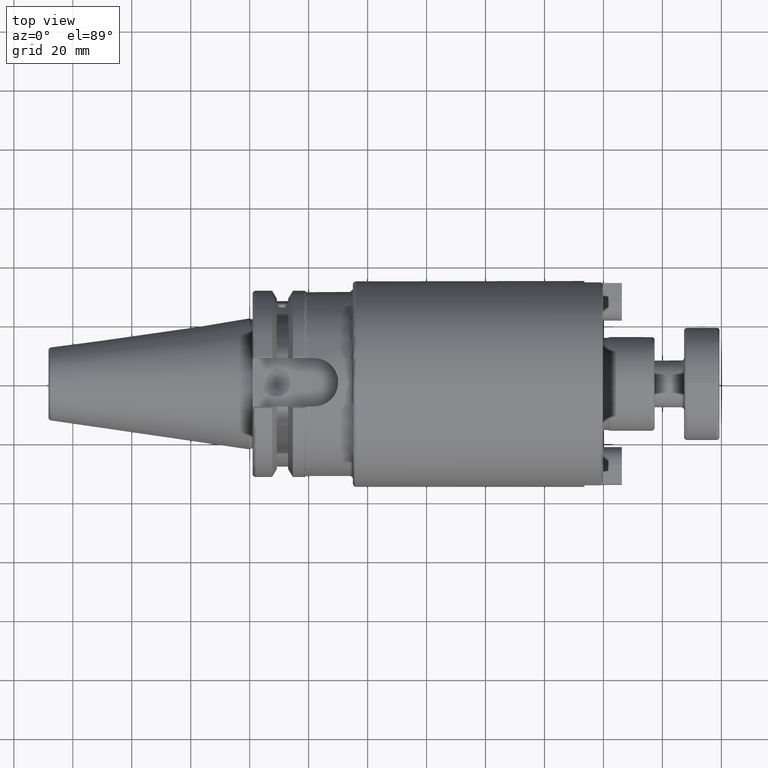
[diagram: clean part render]
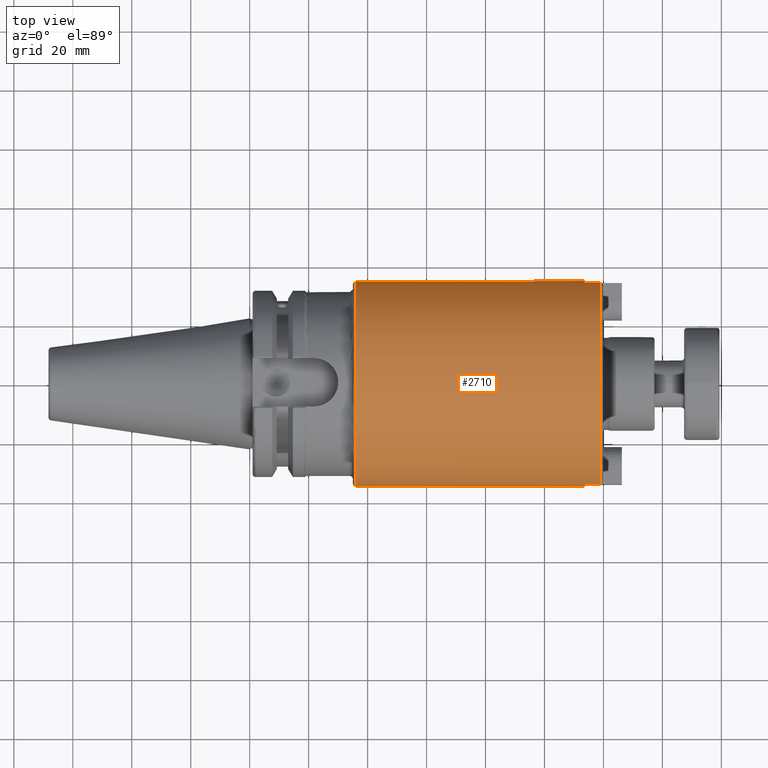
[diagram: same view with one face highlighted and labeled with its STEP entity id]
A machine part, top view. The second image highlights one B-rep face of the part: STEP entity #2710.
In plain terms, the highlighted cylindrical surface (bore or boss wall) has radius 34.925 mm, axis along (1, 0, 0).
Its self-contained STEP definition (entity closure, byte-faithful):
#271=FACE_OUTER_BOUND('',#439,.T.);
#439=EDGE_LOOP('',(#1986,#1987,#1988,#1989,#1990,#1991,#1992,#1993,#1994,
#1995,#1996,#1997,#1998));
#601=CIRCLE('',#2968,34.925);
#602=CIRCLE('',#2969,34.925);
#607=CIRCLE('',#2976,34.925);
#608=CIRCLE('',#2978,34.925);
#612=CIRCLE('',#2988,34.925);
#628=CIRCLE('',#3016,34.925);
#629=CIRCLE('',#3017,34.925);
#755=LINE('',#4277,#928);
#759=LINE('',#4307,#932);
#768=LINE('',#4366,#941);
#770=LINE('',#4373,#943);
#787=LINE('',#4576,#960);
#928=VECTOR('',#3338,10.);
#932=VECTOR('',#3358,10.);
#941=VECTOR('',#3401,10.);
#943=VECTOR('',#3409,10.);
#960=VECTOR('',#3492,34.925);
#1153=VERTEX_POINT('',#4260);
#1156=VERTEX_POINT('',#4275);
#1162=VERTEX_POINT('',#4294);
#1164=VERTEX_POINT('',#4306);
#1165=VERTEX_POINT('',#4311);
#1171=VERTEX_POINT('',#4327);
#1172=VERTEX_POINT('',#4340);
#1177=VERTEX_POINT('',#4364);
#1179=VERTEX_POINT('',#4372);
#1212=VERTEX_POINT('',#4570);
#1213=VERTEX_POINT('',#4571);
#1433=EDGE_CURVE('',#1153,#1156,#755,.T.);
#1442=EDGE_CURVE('',#1164,#1162,#759,.T.);
#1445=EDGE_CURVE('',#1156,#1165,#601,.T.);
#1446=EDGE_CURVE('',#1165,#1164,#602,.T.);
#1453=EDGE_CURVE('',#1153,#1171,#607,.T.);
#1456=EDGE_CURVE('',#1172,#1162,#608,.T.);
#1463=EDGE_CURVE('',#1172,#1177,#768,.T.);
#1466=EDGE_CURVE('',#1179,#1171,#770,.T.);
#1468=EDGE_CURVE('',#1177,#1179,#612,.T.);
#1512=EDGE_CURVE('',#1212,#1213,#628,.T.);
#1513=EDGE_CURVE('',#1213,#1212,#629,.T.);
#1515=EDGE_CURVE('',#1165,#1213,#787,.T.);
#1986=ORIENTED_EDGE('',*,*,#1442,.T.);
#1987=ORIENTED_EDGE('',*,*,#1456,.F.);
#1988=ORIENTED_EDGE('',*,*,#1463,.T.);
#1989=ORIENTED_EDGE('',*,*,#1468,.T.);
#1990=ORIENTED_EDGE('',*,*,#1466,.T.);
#1991=ORIENTED_EDGE('',*,*,#1453,.F.);
#1992=ORIENTED_EDGE('',*,*,#1433,.T.);
#1993=ORIENTED_EDGE('',*,*,#1445,.T.);
#1994=ORIENTED_EDGE('',*,*,#1515,.T.);
#1995=ORIENTED_EDGE('',*,*,#1512,.F.);
#1996=ORIENTED_EDGE('',*,*,#1513,.F.);
#1997=ORIENTED_EDGE('',*,*,#1515,.F.);
#1998=ORIENTED_EDGE('',*,*,#1446,.T.);
#2642=CYLINDRICAL_SURFACE('',#3019,34.925);
#2710=ADVANCED_FACE('',(#271),#2642,.T.);
#2968=AXIS2_PLACEMENT_3D('',#4312,#3363,#3364);
#2969=AXIS2_PLACEMENT_3D('',#4313,#3365,#3366);
#2976=AXIS2_PLACEMENT_3D('',#4328,#3381,#3382);
#2978=AXIS2_PLACEMENT_3D('',#4351,#3385,#3386);
#2988=AXIS2_PLACEMENT_3D('',#4376,#3413,#3414);
#3016=AXIS2_PLACEMENT_3D('',#4572,#3484,#3485);
#3017=AXIS2_PLACEMENT_3D('',#4573,#3486,#3487);
#3019=AXIS2_PLACEMENT_3D('',#4575,#3490,#3491);
#3338=DIRECTION('',(-1.,0.,0.));
#3358=DIRECTION('',(1.,0.,0.));
#3363=DIRECTION('center_axis',(-1.,0.,0.));
#3364=DIRECTION('ref_axis',(0.,1.,0.));
#3365=DIRECTION('center_axis',(-1.,0.,0.));
#3366=DIRECTION('ref_axis',(0.,1.,0.));
#3381=DIRECTION('center_axis',(1.,0.,0.));
#3382=DIRECTION('ref_axis',(0.,-1.,1.83697019872103E-16));
#3385=DIRECTION('center_axis',(1.,0.,0.));
#3386=DIRECTION('ref_axis',(0.,-1.,1.83697019872103E-16));
#3401=DIRECTION('',(-1.,0.,0.));
#3409=DIRECTION('',(1.,0.,0.));
#3413=DIRECTION('center_axis',(-1.,0.,0.));
#3414=DIRECTION('ref_axis',(0.,1.,0.));
#3484=DIRECTION('center_axis',(-1.,0.,0.));
#3485=DIRECTION('ref_axis',(0.,-1.,1.83697019872103E-16));
#3486=DIRECTION('center_axis',(-1.,0.,0.));
#3487=DIRECTION('ref_axis',(0.,-1.,1.83697019872103E-16));
#3490=DIRECTION('center_axis',(1.,0.,0.));
#3491=DIRECTION('ref_axis',(0.,1.,0.));
#3492=DIRECTION('',(-1.,0.,0.));
#4260=CARTESIAN_POINT('',(118.888,-34.3428758987945,-6.35));
#4275=CARTESIAN_POINT('',(113.538,-34.3428758987945,-6.35));
#4277=CARTESIAN_POINT('',(77.444,-34.3428758987945,-6.35));
#4294=CARTESIAN_POINT('',(118.888,-34.3428758987945,6.35));
#4306=CARTESIAN_POINT('',(113.538,-34.3428758987945,6.35));
#4307=CARTESIAN_POINT('',(77.444,-34.3428758987945,6.35));
#4311=CARTESIAN_POINT('',(113.538,-34.925,-4.27707894602213E-15));
#4312=CARTESIAN_POINT('Origin',(113.538,0.,0.));
#4313=CARTESIAN_POINT('Origin',(113.538,0.,0.));
#4327=CARTESIAN_POINT('',(118.888,34.3428758987945,-6.35));
#4328=CARTESIAN_POINT('Origin',(118.888,0.,0.));
#4340=CARTESIAN_POINT('',(118.888,34.3428758987945,6.35));
#4351=CARTESIAN_POINT('Origin',(118.888,0.,0.));
#4364=CARTESIAN_POINT('',(113.538,34.3428758987945,6.35));
#4366=CARTESIAN_POINT('',(77.444,34.3428758987945,6.35));
#4372=CARTESIAN_POINT('',(113.538,34.3428758987945,-6.35));
#4373=CARTESIAN_POINT('',(77.444,34.3428758987945,-6.35));
#4376=CARTESIAN_POINT('Origin',(113.538,0.,0.));
#4570=CARTESIAN_POINT('',(36.,-4.27707894602213E-15,34.925));
#4571=CARTESIAN_POINT('',(36.,-34.925,-4.27707894602213E-15));
#4572=CARTESIAN_POINT('Origin',(36.,0.,0.));
#4573=CARTESIAN_POINT('Origin',(36.,0.,0.));
#4575=CARTESIAN_POINT('Origin',(77.444,0.,0.));
#4576=CARTESIAN_POINT('',(77.444,-34.925,-4.27707894602213E-15));